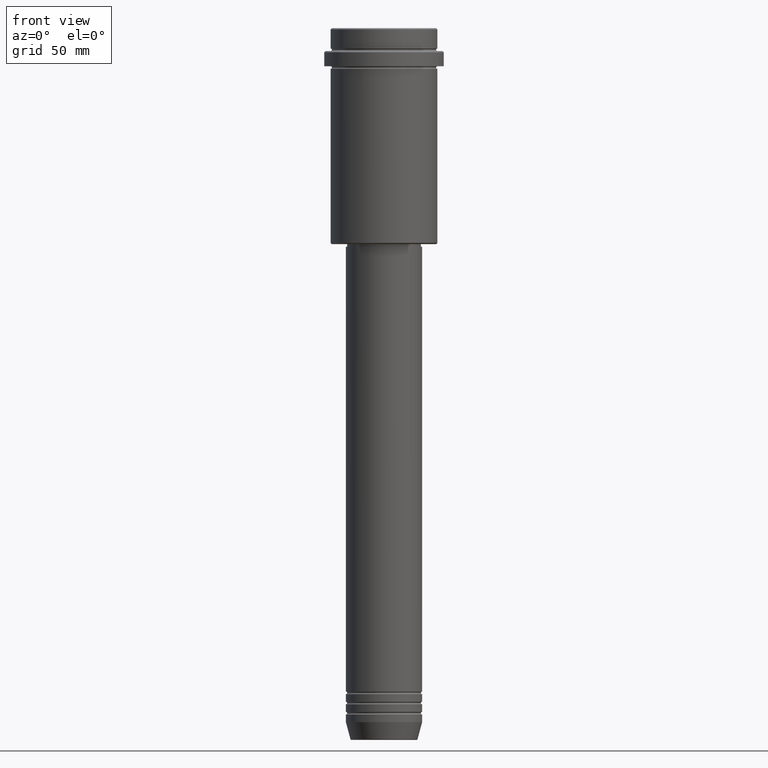
[diagram: clean part render]
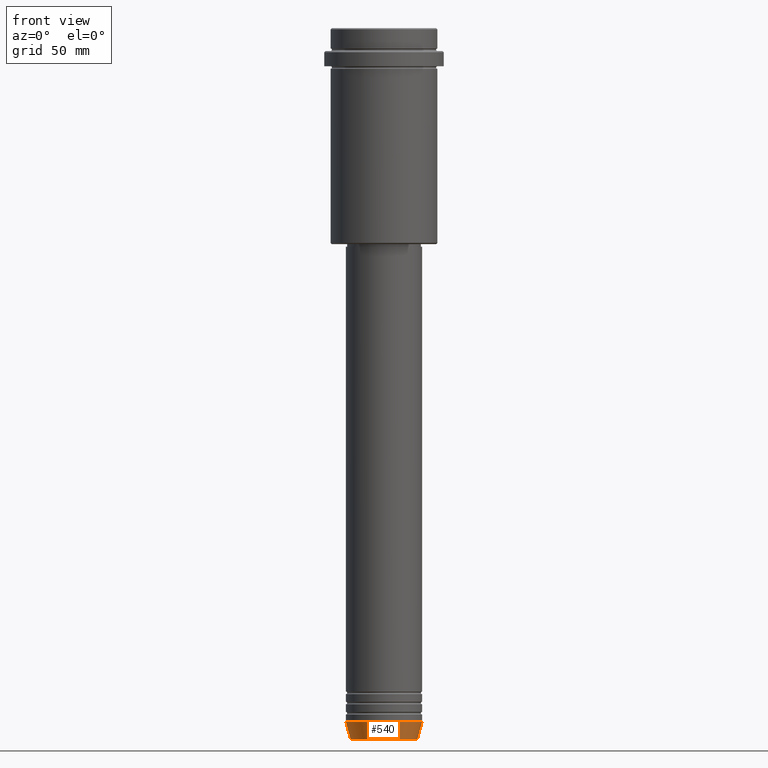
[diagram: same view with one face highlighted and labeled with its STEP entity id]
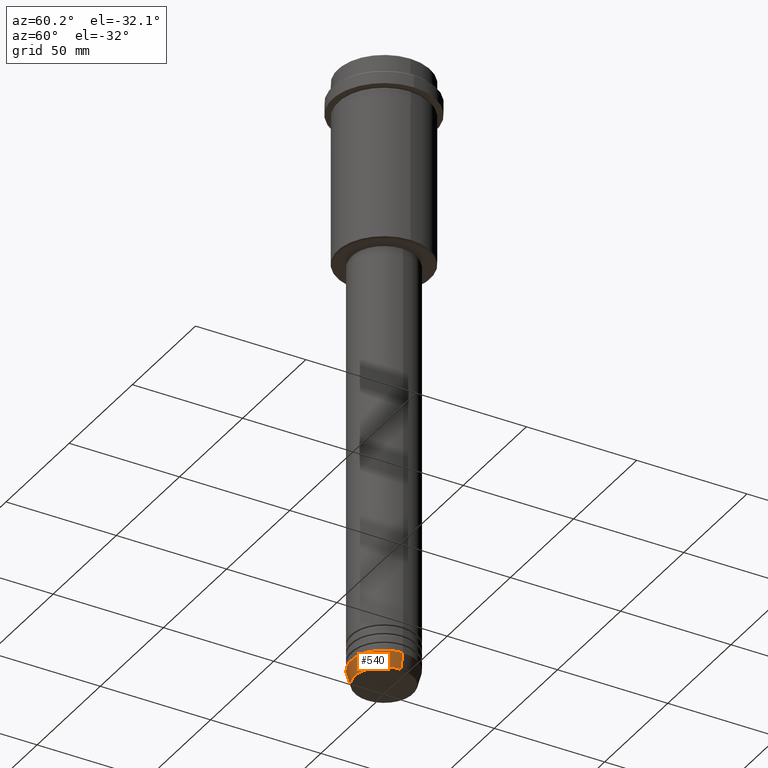
[diagram: same view with one face highlighted and labeled with its STEP entity id]
A machine part, front view. The second image highlights one B-rep face of the part: STEP entity #540.
A second angle (auxiliary view) of the same face is appended — the face is thin or edge-on in the first view.
In plain terms, the highlighted conical surface has half-angle 15 deg.
Its self-contained STEP definition (entity closure, byte-faithful):
#13 = ORIENTED_EDGE ( 'NONE', *, *, #665, .T. ) ;
#42 = DIRECTION ( 'NONE',  ( -0.000000000000000000, -0.000000000000000000, 1.000000000000000000 ) ) ;
#101 = CARTESIAN_POINT ( 'NONE',  ( 15.00000000000000000, 0.000000000000000000, -273.0000000000000000 ) ) ;
#123 = VECTOR ( 'NONE', #362, 1000.000000000000000 ) ;
#182 = DIRECTION ( 'NONE',  ( -0.000000000000000000, -0.000000000000000000, 1.000000000000000000 ) ) ;
#191 = CIRCLE ( 'NONE', #360, 13.22365507213718772 ) ;
#196 = DIRECTION ( 'NONE',  ( -0.000000000000000000, -0.000000000000000000, 1.000000000000000000 ) ) ;
#211 = CIRCLE ( 'NONE', #1019, 15.00000000000000000 ) ;
#238 = EDGE_CURVE ( 'NONE', #1078, #731, #1406, .T. ) ;
#254 = CARTESIAN_POINT ( 'NONE',  ( -15.00000000000000000, 1.836970198721029589E-15, -273.0000000000000000 ) ) ;
#279 = CARTESIAN_POINT ( 'NONE',  ( -13.22365507213718772, 1.728200442216588386E-15, -279.6294095225513274 ) ) ;
#288 = CARTESIAN_POINT ( 'NONE',  ( 0.000000000000000000, 0.000000000000000000, -279.6294095225513274 ) ) ;
#307 = EDGE_CURVE ( 'NONE', #1183, #967, #922, .T. ) ;
#331 = CARTESIAN_POINT ( 'NONE',  ( -15.00000000000000000, 1.836970198721029589E-15, -273.0000000000000000 ) ) ;
#360 = AXIS2_PLACEMENT_3D ( 'NONE', #288, #182, #1369 ) ;
#362 = DIRECTION ( 'NONE',  ( -0.2588190451025213501, 3.169619151431772337E-17, 0.9659258262890680902 ) ) ;
#368 = CARTESIAN_POINT ( 'NONE',  ( 13.22365507213718772, 0.000000000000000000, -279.6294095225513274 ) ) ;
#369 = EDGE_LOOP ( 'NONE', ( #1143, #13, #962, #989 ) ) ;
#400 = FACE_OUTER_BOUND ( 'NONE', #369, .T. ) ;
#515 = DIRECTION ( 'NONE',  ( 0.2588190451025213501, 0.000000000000000000, 0.9659258262890680902 ) ) ;
#540 = ADVANCED_FACE ( 'NONE', ( #400 ), #1403, .T. ) ;
#625 = CARTESIAN_POINT ( 'NONE',  ( 15.00000000000000000, 0.000000000000000000, -273.0000000000000000 ) ) ;
#642 = DIRECTION ( 'NONE',  ( 1.000000000000000000, 0.000000000000000000, 0.000000000000000000 ) ) ;
#665 = EDGE_CURVE ( 'NONE', #1183, #1078, #191, .T. ) ;
#731 = VERTEX_POINT ( 'NONE', #101 ) ;
#744 = AXIS2_PLACEMENT_3D ( 'NONE', #1286, #196, #642 ) ;
#922 = LINE ( 'NONE', #331, #123 ) ;
#962 = ORIENTED_EDGE ( 'NONE', *, *, #238, .T. ) ;
#967 = VERTEX_POINT ( 'NONE', #254 ) ;
#979 = EDGE_CURVE ( 'NONE', #967, #731, #211, .T. ) ;
#989 = ORIENTED_EDGE ( 'NONE', *, *, #979, .F. ) ;
#1019 = AXIS2_PLACEMENT_3D ( 'NONE', #1351, #42, #1102 ) ;
#1078 = VERTEX_POINT ( 'NONE', #368 ) ;
#1102 = DIRECTION ( 'NONE',  ( 1.000000000000000000, 0.000000000000000000, 0.000000000000000000 ) ) ;
#1143 = ORIENTED_EDGE ( 'NONE', *, *, #307, .F. ) ;
#1183 = VERTEX_POINT ( 'NONE', #279 ) ;
#1212 = VECTOR ( 'NONE', #515, 1000.000000000000000 ) ;
#1286 = CARTESIAN_POINT ( 'NONE',  ( 0.000000000000000000, 0.000000000000000000, -273.0000000000000000 ) ) ;
#1351 = CARTESIAN_POINT ( 'NONE',  ( 0.000000000000000000, 0.000000000000000000, -273.0000000000000000 ) ) ;
#1369 = DIRECTION ( 'NONE',  ( 1.000000000000000000, 0.000000000000000000, 0.000000000000000000 ) ) ;
#1403 = CONICAL_SURFACE ( 'NONE', #744, 15.00000000000000000, 0.2617993877991500740 ) ;
#1406 = LINE ( 'NONE', #625, #1212 ) ;